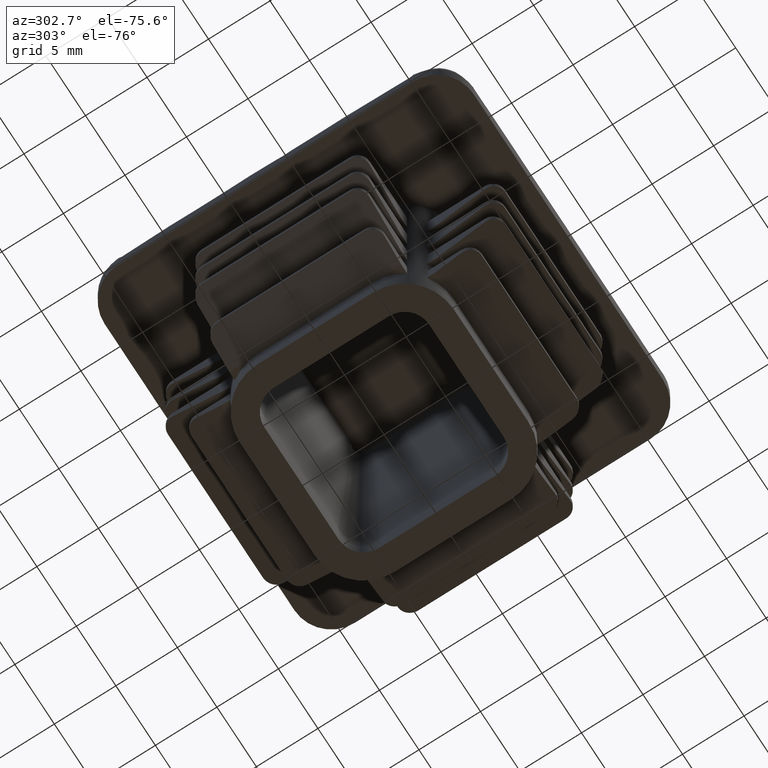
[diagram: clean part render]
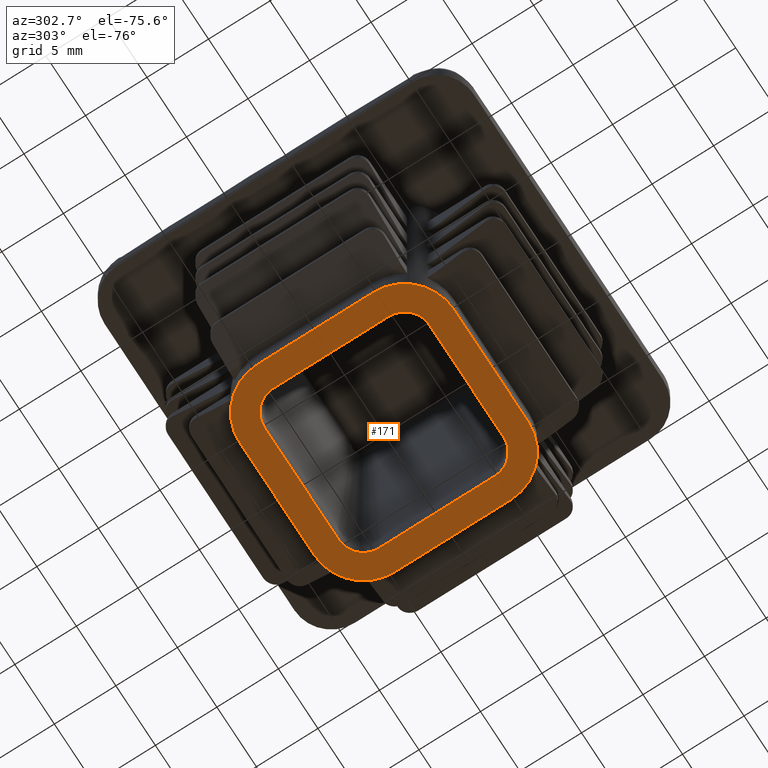
[diagram: same view with one face highlighted and labeled with its STEP entity id]
A machine part, auxiliary view. The second image highlights one B-rep face of the part: STEP entity #171.
In plain terms, the highlighted planar face has unit normal (0, 0, 1).
Its self-contained STEP definition (entity closure, byte-faithful):
#171 = ADVANCED_FACE( '', ( #550, #551 ), #552, .F. );
#550 = FACE_BOUND( '', #2065, .T. );
#551 = FACE_OUTER_BOUND( '', #2066, .T. );
#552 = PLANE( '', #2067 );
#2065 = EDGE_LOOP( '', ( #4062, #4063, #4064, #4065, #4066, #4067, #4068, #4069 ) );
#2066 = EDGE_LOOP( '', ( #4070, #4071, #4072, #4073, #4074, #4075, #4076, #4077 ) );
#2067 = AXIS2_PLACEMENT_3D( '', #4078, #4079, #4080 );
#4062 = ORIENTED_EDGE( '', *, *, #5743, .T. );
#4063 = ORIENTED_EDGE( '', *, *, #5744, .T. );
#4064 = ORIENTED_EDGE( '', *, *, #5745, .T. );
#4065 = ORIENTED_EDGE( '', *, *, #5746, .T. );
#4066 = ORIENTED_EDGE( '', *, *, #5747, .T. );
#4067 = ORIENTED_EDGE( '', *, *, #5748, .T. );
#4068 = ORIENTED_EDGE( '', *, *, #5749, .T. );
#4069 = ORIENTED_EDGE( '', *, *, #5750, .T. );
#4070 = ORIENTED_EDGE( '', *, *, #5697, .F. );
#4071 = ORIENTED_EDGE( '', *, *, #5729, .F. );
#4072 = ORIENTED_EDGE( '', *, *, #5653, .F. );
#4073 = ORIENTED_EDGE( '', *, *, #5686, .F. );
#4074 = ORIENTED_EDGE( '', *, *, #5575, .F. );
#4075 = ORIENTED_EDGE( '', *, *, #5642, .F. );
#4076 = ORIENTED_EDGE( '', *, *, #5636, .F. );
#4077 = ORIENTED_EDGE( '', *, *, #5738, .F. );
#4078 = CARTESIAN_POINT( '', ( -4.70000000000000, -4.70000000000000, 0.000000000000000 ) );
#4079 = DIRECTION( '', ( 0.000000000000000, 0.000000000000000, 1.00000000000000 ) );
#4080 = DIRECTION( '', ( 0.000000000000000, -1.00000000000000, 0.000000000000000 ) );
#5575 = EDGE_CURVE( '', #6414, #6416, #6417, .T. );
#5636 = EDGE_CURVE( '', #6534, #6536, #6537, .T. );
#5642 = EDGE_CURVE( '', #6536, #6414, #6544, .T. );
#5653 = EDGE_CURVE( '', #6559, #6561, #6562, .T. );
#5686 = EDGE_CURVE( '', #6416, #6559, #6622, .T. );
#5697 = EDGE_CURVE( '', #6637, #6639, #6640, .T. );
#5729 = EDGE_CURVE( '', #6561, #6637, #6698, .T. );
#5738 = EDGE_CURVE( '', #6639, #6534, #6707, .T. );
#5743 = EDGE_CURVE( '', #6712, #6713, #6714, .T. );
#5744 = EDGE_CURVE( '', #6713, #6715, #6716, .T. );
#5745 = EDGE_CURVE( '', #6715, #6717, #6718, .T. );
#5746 = EDGE_CURVE( '', #6717, #6719, #6720, .T. );
#5747 = EDGE_CURVE( '', #6719, #6721, #6722, .T. );
#5748 = EDGE_CURVE( '', #6721, #6723, #6724, .T. );
#5749 = EDGE_CURVE( '', #6723, #6725, #6726, .T. );
#5750 = EDGE_CURVE( '', #6725, #6712, #6727, .T. );
#6414 = VERTEX_POINT( '', #8849 );
#6416 = VERTEX_POINT( '', #8852 );
#6417 = CIRCLE( '', #8853, 4.00000000000000 );
#6534 = VERTEX_POINT( '', #9000 );
#6536 = VERTEX_POINT( '', #9003 );
#6537 = CIRCLE( '', #9004, 4.00000000000000 );
#6544 = LINE( '', #9015, #9016 );
#6559 = VERTEX_POINT( '', #9038 );
#6561 = VERTEX_POINT( '', #9041 );
#6562 = CIRCLE( '', #9042, 4.00000000000000 );
#6622 = LINE( '', #9120, #9121 );
#6637 = VERTEX_POINT( '', #9143 );
#6639 = VERTEX_POINT( '', #9146 );
#6640 = CIRCLE( '', #9147, 4.00000000000000 );
#6698 = LINE( '', #9222, #9223 );
#6707 = LINE( '', #9240, #9241 );
#6712 = VERTEX_POINT( '', #9250 );
#6713 = VERTEX_POINT( '', #9251 );
#6714 = LINE( '', #9252, #9253 );
#6715 = VERTEX_POINT( '', #9254 );
#6716 = CIRCLE( '', #9255, 2.00000000000000 );
#6717 = VERTEX_POINT( '', #9256 );
#6718 = LINE( '', #9257, #9258 );
#6719 = VERTEX_POINT( '', #9259 );
#6720 = CIRCLE( '', #9260, 2.00000000000000 );
#6721 = VERTEX_POINT( '', #9261 );
#6722 = LINE( '', #9262, #9263 );
#6723 = VERTEX_POINT( '', #9264 );
#6724 = CIRCLE( '', #9265, 2.00000000000000 );
#6725 = VERTEX_POINT( '', #9266 );
#6726 = LINE( '', #9267, #9268 );
#6727 = CIRCLE( '', #9269, 2.00000000000000 );
#8849 = CARTESIAN_POINT( '', ( 8.70000000000000, 4.70000000000000, 0.000000000000000 ) );
#8852 = CARTESIAN_POINT( '', ( 4.70000000000000, 8.70000000000000, 0.000000000000000 ) );
#8853 = AXIS2_PLACEMENT_3D( '', #10504, #10505, #10506 );
#9000 = CARTESIAN_POINT( '', ( 4.70000000000000, -8.70000000000000, 0.000000000000000 ) );
#9003 = CARTESIAN_POINT( '', ( 8.70000000000000, -4.70000000000000, 0.000000000000000 ) );
#9004 = AXIS2_PLACEMENT_3D( '', #10625, #10626, #10627 );
#9015 = CARTESIAN_POINT( '', ( 8.70000000000000, -4.70000000000000, 0.000000000000000 ) );
#9016 = VECTOR( '', #10635, 1000.00000000000 );
#9038 = CARTESIAN_POINT( '', ( -4.70000000000000, 8.70000000000000, 0.000000000000000 ) );
#9041 = CARTESIAN_POINT( '', ( -8.70000000000000, 4.70000000000000, 0.000000000000000 ) );
#9042 = AXIS2_PLACEMENT_3D( '', #10650, #10651, #10652 );
#9120 = CARTESIAN_POINT( '', ( 4.70000000000000, 8.70000000000000, 0.000000000000000 ) );
#9121 = VECTOR( '', #10713, 1000.00000000000 );
#9143 = CARTESIAN_POINT( '', ( -8.70000000000000, -4.70000000000000, 0.000000000000000 ) );
#9146 = CARTESIAN_POINT( '', ( -4.70000000000000, -8.70000000000000, 0.000000000000000 ) );
#9147 = AXIS2_PLACEMENT_3D( '', #10728, #10729, #10730 );
#9222 = CARTESIAN_POINT( '', ( -8.70000000000000, 4.70000000000000, 0.000000000000000 ) );
#9223 = VECTOR( '', #10790, 1000.00000000000 );
#9240 = CARTESIAN_POINT( '', ( -4.70000000000000, -8.70000000000000, 0.000000000000000 ) );
#9241 = VECTOR( '', #10799, 1000.00000000000 );
#9250 = CARTESIAN_POINT( '', ( -6.70000000000000, 4.70000000000000, 0.000000000000000 ) );
#9251 = CARTESIAN_POINT( '', ( -6.70000000000000, -4.70000000000000, 0.000000000000000 ) );
#9252 = CARTESIAN_POINT( '', ( -6.70000000000000, 4.70000000000000, 0.000000000000000 ) );
#9253 = VECTOR( '', #10804, 1000.00000000000 );
#9254 = CARTESIAN_POINT( '', ( -4.70000000000000, -6.70000000000000, 0.000000000000000 ) );
#9255 = AXIS2_PLACEMENT_3D( '', #10805, #10806, #10807 );
#9256 = CARTESIAN_POINT( '', ( 4.70000000000000, -6.70000000000000, 0.000000000000000 ) );
#9257 = CARTESIAN_POINT( '', ( -4.70000000000000, -6.70000000000000, 0.000000000000000 ) );
#9258 = VECTOR( '', #10808, 1000.00000000000 );
#9259 = CARTESIAN_POINT( '', ( 6.70000000000000, -4.70000000000000, 0.000000000000000 ) );
#9260 = AXIS2_PLACEMENT_3D( '', #10809, #10810, #10811 );
#9261 = CARTESIAN_POINT( '', ( 6.70000000000000, 4.70000000000000, 0.000000000000000 ) );
#9262 = CARTESIAN_POINT( '', ( 6.70000000000000, -4.70000000000000, 0.000000000000000 ) );
#9263 = VECTOR( '', #10812, 1000.00000000000 );
#9264 = CARTESIAN_POINT( '', ( 4.70000000000000, 6.70000000000000, 0.000000000000000 ) );
#9265 = AXIS2_PLACEMENT_3D( '', #10813, #10814, #10815 );
#9266 = CARTESIAN_POINT( '', ( -4.70000000000000, 6.70000000000000, 0.000000000000000 ) );
#9267 = CARTESIAN_POINT( '', ( 4.70000000000000, 6.70000000000000, 0.000000000000000 ) );
#9268 = VECTOR( '', #10816, 1000.00000000000 );
#9269 = AXIS2_PLACEMENT_3D( '', #10817, #10818, #10819 );
#10504 = CARTESIAN_POINT( '', ( 4.70000000000000, 4.70000000000000, 0.000000000000000 ) );
#10505 = DIRECTION( '', ( 0.000000000000000, 0.000000000000000, 1.00000000000000 ) );
#10506 = DIRECTION( '', ( 1.00000000000000, 0.000000000000000, 0.000000000000000 ) );
#10625 = CARTESIAN_POINT( '', ( 4.70000000000000, -4.70000000000000, 0.000000000000000 ) );
#10626 = DIRECTION( '', ( 0.000000000000000, 0.000000000000000, 1.00000000000000 ) );
#10627 = DIRECTION( '', ( 0.000000000000000, -1.00000000000000, 0.000000000000000 ) );
#10635 = DIRECTION( '', ( 0.000000000000000, 1.00000000000000, 0.000000000000000 ) );
#10650 = CARTESIAN_POINT( '', ( -4.70000000000000, 4.70000000000000, 0.000000000000000 ) );
#10651 = DIRECTION( '', ( 0.000000000000000, 0.000000000000000, 1.00000000000000 ) );
#10652 = DIRECTION( '', ( 2.16840434497101E-016, 1.00000000000000, 0.000000000000000 ) );
#10713 = DIRECTION( '', ( -1.00000000000000, 0.000000000000000, 0.000000000000000 ) );
#10728 = CARTESIAN_POINT( '', ( -4.70000000000000, -4.70000000000000, 0.000000000000000 ) );
#10729 = DIRECTION( '', ( 0.000000000000000, 0.000000000000000, 1.00000000000000 ) );
#10730 = DIRECTION( '', ( -1.00000000000000, 2.16840434497101E-016, 0.000000000000000 ) );
#10790 = DIRECTION( '', ( 0.000000000000000, -1.00000000000000, 0.000000000000000 ) );
#10799 = DIRECTION( '', ( 1.00000000000000, 0.000000000000000, 0.000000000000000 ) );
#10804 = DIRECTION( '', ( 0.000000000000000, -1.00000000000000, 0.000000000000000 ) );
#10805 = CARTESIAN_POINT( '', ( -4.70000000000000, -4.70000000000000, 0.000000000000000 ) );
#10806 = DIRECTION( '', ( 0.000000000000000, 0.000000000000000, 1.00000000000000 ) );
#10807 = DIRECTION( '', ( -1.00000000000000, 4.33680868994202E-016, 0.000000000000000 ) );
#10808 = DIRECTION( '', ( 1.00000000000000, 0.000000000000000, 0.000000000000000 ) );
#10809 = CARTESIAN_POINT( '', ( 4.70000000000000, -4.70000000000000, 0.000000000000000 ) );
#10810 = DIRECTION( '', ( 0.000000000000000, 0.000000000000000, 1.00000000000000 ) );
#10811 = DIRECTION( '', ( 0.000000000000000, -1.00000000000000, 0.000000000000000 ) );
#10812 = DIRECTION( '', ( 0.000000000000000, 1.00000000000000, 0.000000000000000 ) );
#10813 = CARTESIAN_POINT( '', ( 4.70000000000000, 4.70000000000000, 0.000000000000000 ) );
#10814 = DIRECTION( '', ( 0.000000000000000, 0.000000000000000, 1.00000000000000 ) );
#10815 = DIRECTION( '', ( 1.00000000000000, -8.67361737988403E-016, 0.000000000000000 ) );
#10816 = DIRECTION( '', ( -1.00000000000000, 0.000000000000000, 0.000000000000000 ) );
#10817 = CARTESIAN_POINT( '', ( -4.70000000000000, 4.70000000000000, 0.000000000000000 ) );
#10818 = DIRECTION( '', ( 0.000000000000000, 0.000000000000000, 1.00000000000000 ) );
#10819 = DIRECTION( '', ( 4.33680868994202E-016, 1.00000000000000, 0.000000000000000 ) );